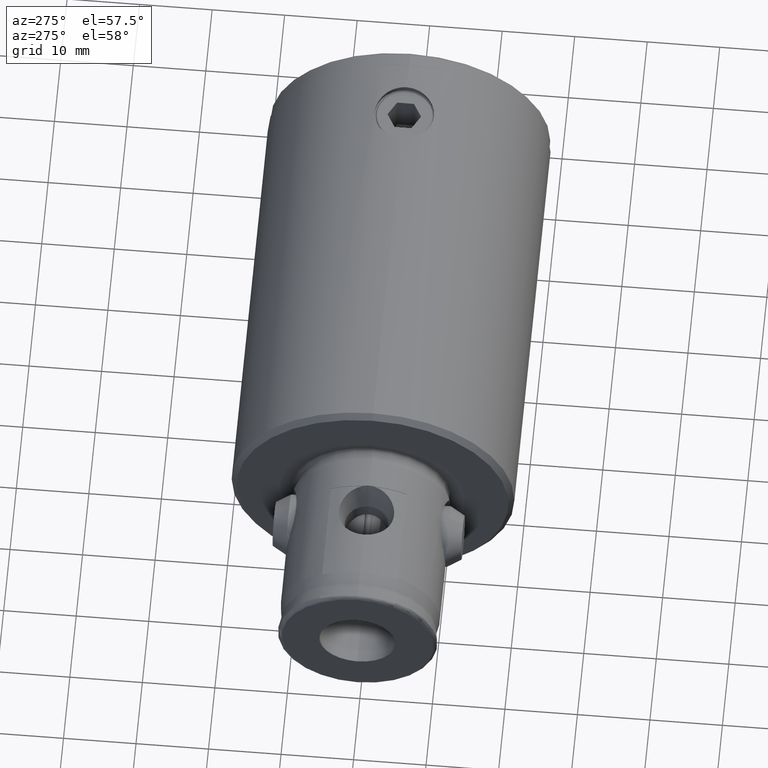
[diagram: clean part render]
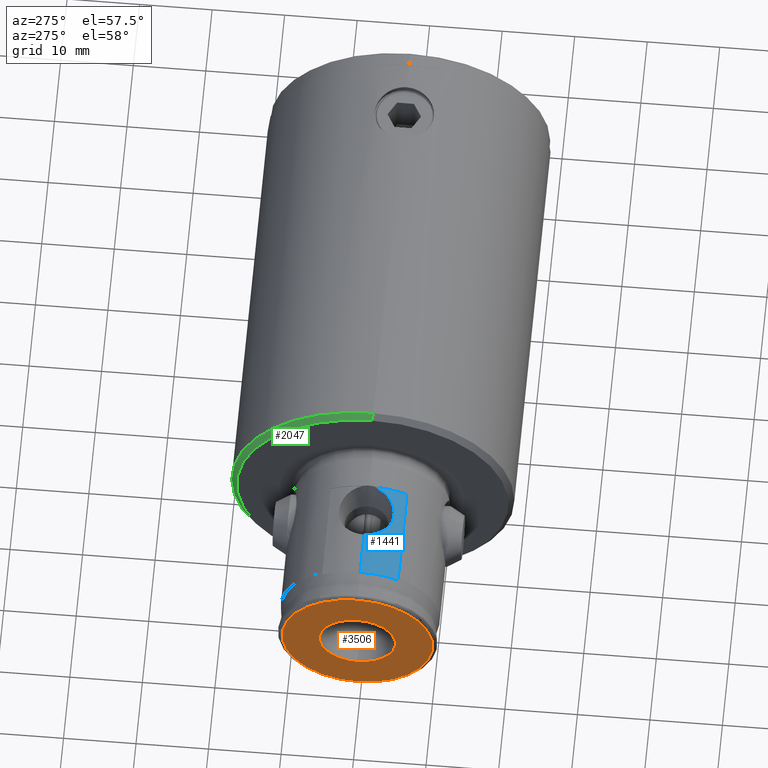
[diagram: same view with three faces highlighted in distinct colors, each labeled with its STEP entity id]
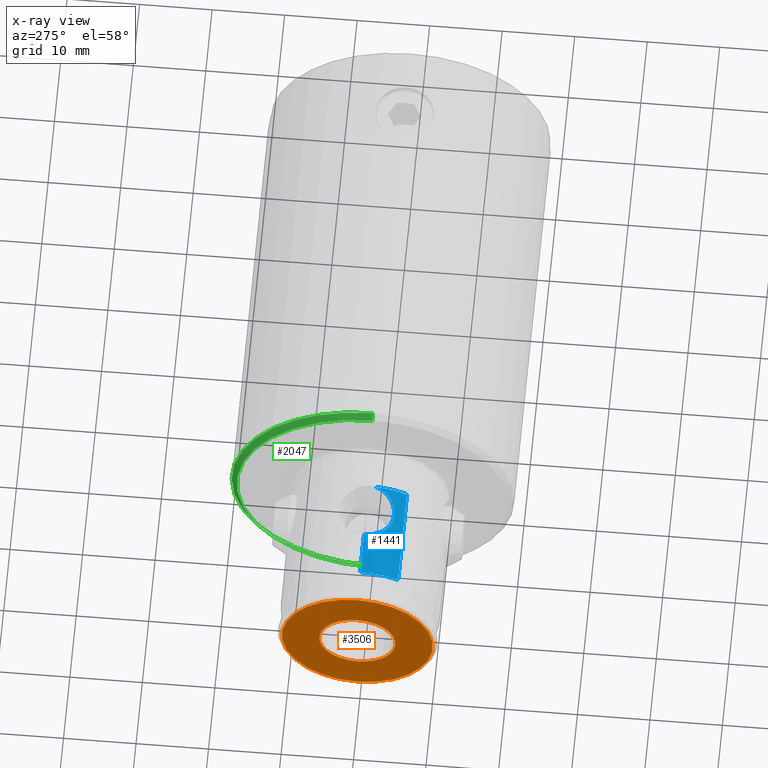
[diagram: x-ray of the same camera — body ghosted, the three highlighted faces saturated]
A machine part, auxiliary view with three faces highlighted in distinct colors.
The next image is the same camera in x-ray (body ghosted, the three faces saturated) — at least one of them is partly hidden behind the body in this view.
Their STEP definitions:

[orange] entity #3506 — the highlighted planar face has unit normal (-1, 0, 0).
#15 = EDGE_CURVE ( 'NONE', #3512, #3226, #1891, .T. ) ;
#100 = DIRECTION ( 'NONE',  ( 1.000000000000000000, 0.0000000000000000000, 0.0000000000000000000 ) ) ;
#421 = DIRECTION ( 'NONE',  ( 1.000000000000000000, 0.0000000000000000000, 0.0000000000000000000 ) ) ;
#439 = EDGE_LOOP ( 'NONE', ( #1877, #1135 ) ) ;
#454 = DIRECTION ( 'NONE',  ( 0.0000000000000000000, 0.0000000000000000000, 1.000000000000000000 ) ) ;
#475 = CARTESIAN_POINT ( 'NONE',  ( 0.0000000000000000000, 0.0000000000000000000, 83.99999999999998600 ) ) ;
#505 = EDGE_LOOP ( 'NONE', ( #1006, #2805 ) ) ;
#699 = AXIS2_PLACEMENT_3D ( 'NONE', #2475, #1800, #4316 ) ;
#704 = AXIS2_PLACEMENT_3D ( 'NONE', #2151, #4692, #2503 ) ;
#1006 = ORIENTED_EDGE ( 'NONE', *, *, #4218, .F. ) ;
#1080 = AXIS2_PLACEMENT_3D ( 'NONE', #1114, #3635, #1481 ) ;
#1114 = CARTESIAN_POINT ( 'NONE',  ( 0.0000000000000000000, 0.0000000000000000000, 83.99999999999998600 ) ) ;
#1117 = VERTEX_POINT ( 'NONE', #3392 ) ;
#1135 = ORIENTED_EDGE ( 'NONE', *, *, #2260, .T. ) ;
#1270 = VERTEX_POINT ( 'NONE', #2481 ) ;
#1369 = CIRCLE ( 'NONE', #704, 10.40839202169003000 ) ;
#1481 = DIRECTION ( 'NONE',  ( 1.000000000000000000, 0.0000000000000000000, 0.0000000000000000000 ) ) ;
#1800 = DIRECTION ( 'NONE',  ( 0.0000000000000000000, 0.0000000000000000000, 1.000000000000000000 ) ) ;
#1870 = FACE_OUTER_BOUND ( 'NONE', #439, .T. ) ;
#1877 = ORIENTED_EDGE ( 'NONE', *, *, #15, .T. ) ;
#1891 = CIRCLE ( 'NONE', #4167, 10.40839202169003000 ) ;
#2151 = CARTESIAN_POINT ( 'NONE',  ( 0.0000000000000000000, 0.0000000000000000000, 83.99999999999998600 ) ) ;
#2260 = EDGE_CURVE ( 'NONE', #3226, #3512, #1369, .T. ) ;
#2280 = DIRECTION ( 'NONE',  ( 0.0000000000000000000, 0.0000000000000000000, 1.000000000000000000 ) ) ;
#2475 = CARTESIAN_POINT ( 'NONE',  ( 0.0000000000000000000, 0.0000000000000000000, 83.99999999999998600 ) ) ;
#2481 = CARTESIAN_POINT ( 'NONE',  ( 5.249999999999988500, 0.0000000000000000000, 83.99999999999998600 ) ) ;
#2503 = DIRECTION ( 'NONE',  ( 1.000000000000000000, 0.0000000000000000000, 0.0000000000000000000 ) ) ;
#2805 = ORIENTED_EDGE ( 'NONE', *, *, #3560, .F. ) ;
#3023 = CARTESIAN_POINT ( 'NONE',  ( 10.40839202169003000, 1.310885938212720900E-015, 83.99999999999998600 ) ) ;
#3082 = CIRCLE ( 'NONE', #4269, 5.249999999999988500 ) ;
#3209 = PLANE ( 'NONE',  #699 ) ;
#3226 = VERTEX_POINT ( 'NONE', #3023 ) ;
#3392 = CARTESIAN_POINT ( 'NONE',  ( -5.249999999999988500, 6.429395695523590300E-016, 83.99999999999998600 ) ) ;
#3423 = CIRCLE ( 'NONE', #1080, 5.249999999999988500 ) ;
#3506 = ADVANCED_FACE ( 'NONE', ( #4132, #1870 ), #3209, .T. ) ;
#3512 = VERTEX_POINT ( 'NONE', #3949 ) ;
#3560 = EDGE_CURVE ( 'NONE', #1117, #1270, #3423, .T. ) ;
#3635 = DIRECTION ( 'NONE',  ( 0.0000000000000000000, 0.0000000000000000000, 1.000000000000000000 ) ) ;
#3949 = CARTESIAN_POINT ( 'NONE',  ( -10.40839202169003000, 0.0000000000000000000, 83.99999999999998600 ) ) ;
#4132 = FACE_BOUND ( 'NONE', #505, .T. ) ;
#4167 = AXIS2_PLACEMENT_3D ( 'NONE', #475, #454, #421 ) ;
#4218 = EDGE_CURVE ( 'NONE', #1270, #1117, #3082, .T. ) ;
#4269 = AXIS2_PLACEMENT_3D ( 'NONE', #4460, #2280, #100 ) ;
#4316 = DIRECTION ( 'NONE',  ( 1.000000000000000000, 0.0000000000000000000, 0.0000000000000000000 ) ) ;
#4460 = CARTESIAN_POINT ( 'NONE',  ( 0.0000000000000000000, 0.0000000000000000000, 83.99999999999998600 ) ) ;
#4692 = DIRECTION ( 'NONE',  ( 0.0000000000000000000, 0.0000000000000000000, 1.000000000000000000 ) ) ;

[blue] entity #1441 — the highlighted cylindrical surface (partial cylindrical patch) has radius 11 mm, axis along (-1, 0, 0).
#6 = CARTESIAN_POINT ( 'NONE',  ( 10.66527698629981400, -2.492469856563494600, 66.61903056252766900 ) ) ;
#76 = CARTESIAN_POINT ( 'NONE',  ( 10.94999999999999900, -0.4537184893482177400, 79.78356409098096000 ) ) ;
#331 = CARTESIAN_POINT ( 'NONE',  ( 10.91129298818501100, -0.9514204965630542700, 73.52493443035274400 ) ) ;
#350 = CARTESIAN_POINT ( 'NONE',  ( 10.28489345510745600, -3.767041546363515600, 70.29877509884899200 ) ) ;
#367 = CARTESIAN_POINT ( 'NONE',  ( 10.81961729792752500, -1.733747473468614000, 66.06061869512279800 ) ) ;
#449 = CARTESIAN_POINT ( 'NONE',  ( 10.80905743370498600, -1.813696568738276200, 79.77991429509752700 ) ) ;
#466 = VERTEX_POINT ( 'NONE', #2364 ) ;
#521 = VERTEX_POINT ( 'NONE', #3220 ) ;
#539 = CARTESIAN_POINT ( 'NONE',  ( 10.94999999999999900, 4.890304327766964200E-016, 73.64323651699024300 ) ) ;
#590 = VERTEX_POINT ( 'NONE', #539 ) ;
#706 = CARTESIAN_POINT ( 'NONE',  ( 10.83188070535241600, -1.623176719446241000, 73.27174910624796700 ) ) ;
#726 = CARTESIAN_POINT ( 'NONE',  ( 10.26649939494549500, -3.817091599625392000, 69.58437106398731900 ) ) ;
#743 = CARTESIAN_POINT ( 'NONE',  ( 10.91947234154720200, -0.8189484403983675600, 65.74999999999998600 ) ) ;
#749 = VERTEX_POINT ( 'NONE', #1509 ) ;
#769 = DIRECTION ( 'NONE',  ( 0.0000000000000000000, 0.0000000000000000000, -1.000000000000000000 ) ) ;
#827 = CARTESIAN_POINT ( 'NONE',  ( 10.38616391830050000, -3.594245898107188100, 79.76896428649348500 ) ) ;
#1074 = CARTESIAN_POINT ( 'NONE',  ( 10.72376072591941600, -2.228548092232589100, 72.89882755136909500 ) ) ;
#1099 = CARTESIAN_POINT ( 'NONE',  ( 10.29362263366560800, -3.743428086886627000, 68.86533236385916700 ) ) ;
#1113 = DIRECTION ( 'NONE',  ( 0.0000000000000000000, 0.0000000000000000000, 1.000000000000000000 ) ) ;
#1176 = CARTESIAN_POINT ( 'NONE',  ( 10.94999999999999900, 4.719200094192311200E-017, 79.78356409098094600 ) ) ;
#1194 = CARTESIAN_POINT ( 'NONE',  ( 9.616307464590644100, -5.249999999999999100, 79.74903603581017800 ) ) ;
#1195 = CYLINDRICAL_SURFACE ( 'NONE', #1860, 11.00000000000000000 ) ;
#1252 = EDGE_CURVE ( 'NONE', #521, #749, #2918, .T. ) ;
#1254 = FACE_OUTER_BOUND ( 'NONE', #2222, .T. ) ;
#1379 = B_SPLINE_CURVE_WITH_KNOTS ( 'NONE', 3,
 ( #3580, #3953, #2497, #331, #2856, #706, #3232, #1074, #3596, #1450, #3977, #1818, #4333, #2159, #4700, #2511, #350, #2873, #726, #3244, #1099, #3612, #1470, #3992, #1836, #4353, #2177, #6, #2526, #367, #2897, #743 ),
 .UNSPECIFIED., .F., .F.,
 ( 4, 2, 2, 2, 2, 2, 2, 2, 2, 2, 2, 2, 2, 2, 2, 4 ),
 ( 0.01147723532636959500, 0.01219359559830323500, 0.01290995587023687600, 0.01362631614217051600, 0.01434267641410415600, 0.01505903668603779400, 0.01577539695797143500, 0.01649175722990507300, 0.01720811750183871100, 0.01792447777377235300, 0.01864083804570599400, 0.01935719831763963600, 0.02007355858957327400, 0.02078991886150691200, 0.02150627913344055300, 0.02293899967730783300 ),
 .UNSPECIFIED. ) ;
#1397 = DIRECTION ( 'NONE',  ( 1.000000000000000000, 0.0000000000000000000, 0.0000000000000000000 ) ) ;
#1440 = B_SPLINE_CURVE_WITH_KNOTS ( 'NONE', 3,
 ( #1176, #76, #2606, #449, #2968, #827, #3338, #1194 ),
 .UNSPECIFIED., .F., .F.,
 ( 4, 2, 2, 4 ),
 ( 0.005447054268542994900, 0.006808165212190993600, 0.008169276155838992400, 0.01089149804313499000 ),
 .UNSPECIFIED. ) ;
#1441 = ADVANCED_FACE ( 'NONE', ( #1254 ), #1195, .T. ) ;
#1450 = CARTESIAN_POINT ( 'NONE',  ( 10.60057726783537600, -2.756071458746765400, 72.41895481182336900 ) ) ;
#1462 = LINE ( 'NONE', #3634, #2843 ) ;
#1470 = CARTESIAN_POINT ( 'NONE',  ( 10.36184850290262800, -3.550197941304011500, 68.17850246956904000 ) ) ;
#1509 = CARTESIAN_POINT ( 'NONE',  ( 9.616307464590644100, -5.249999999999999100, 79.74903603581017800 ) ) ;
#1765 = DIRECTION ( 'NONE',  ( 0.0000000000000000000, 0.0000000000000000000, 1.000000000000000000 ) ) ;
#1818 = CARTESIAN_POINT ( 'NONE',  ( 10.47976235803627200, -3.185064434833818400, 71.85604766344772500 ) ) ;
#1836 = CARTESIAN_POINT ( 'NONE',  ( 10.46306800182020200, -3.239505624835328700, 67.53292692106074900 ) ) ;
#1860 = AXIS2_PLACEMENT_3D ( 'NONE', #4280, #1765, #1397 ) ;
#1979 = EDGE_CURVE ( 'NONE', #590, #466, #1379, .T. ) ;
#2159 = CARTESIAN_POINT ( 'NONE',  ( 10.37503516063773500, -3.511432754155041600, 71.22013224387106300 ) ) ;
#2177 = CARTESIAN_POINT ( 'NONE',  ( 10.58213688033525200, -2.826169180501966400, 66.95966031106752300 ) ) ;
#2222 = EDGE_LOOP ( 'NONE', ( #4046, #3937, #3519, #4505, #4107 ) ) ;
#2323 = AXIS2_PLACEMENT_3D ( 'NONE', #2912, #769, #3285 ) ;
#2364 = CARTESIAN_POINT ( 'NONE',  ( 10.91947234154720200, -0.8189484403983675600, 65.74999999999998600 ) ) ;
#2425 = EDGE_CURVE ( 'NONE', #4315, #749, #1440, .T. ) ;
#2497 = CARTESIAN_POINT ( 'NONE',  ( 10.94191008765914900, -0.4827603535204988400, 73.61896422460684200 ) ) ;
#2511 = CARTESIAN_POINT ( 'NONE',  ( 10.30125209258481100, -3.722389368362894100, 70.53805540246239000 ) ) ;
#2526 = CARTESIAN_POINT ( 'NONE',  ( 10.70603258936241700, -2.312223618697947000, 66.46611884311649000 ) ) ;
#2606 = CARTESIAN_POINT ( 'NONE',  ( 10.92203744086934400, -0.9072033885066174100, 79.78283995216006000 ) ) ;
#2756 = VECTOR ( 'NONE', #2841, 1000.000000000000000 ) ;
#2841 = DIRECTION ( 'NONE',  ( 0.0000000000000000000, 0.0000000000000000000, 1.000000000000000000 ) ) ;
#2843 = VECTOR ( 'NONE', #1113, 1000.000000000000000 ) ;
#2856 = CARTESIAN_POINT ( 'NONE',  ( 10.88886993538117300, -1.179472290851838000, 73.45550077224267200 ) ) ;
#2869 = CARTESIAN_POINT ( 'NONE',  ( 10.94999999999999900, 4.719200094192311200E-017, 79.78356409098094600 ) ) ;
#2873 = CARTESIAN_POINT ( 'NONE',  ( 10.26766746258486900, -3.813969437734043000, 69.82306545589315800 ) ) ;
#2897 = CARTESIAN_POINT ( 'NONE',  ( 10.88428491625875500, -1.290269306806117100, 65.85860522173632600 ) ) ;
#2912 = CARTESIAN_POINT ( 'NONE',  ( -0.05000000000000000300, 0.0000000000000000000, 65.74999999999998600 ) ) ;
#2918 = LINE ( 'NONE', #4671, #2756 ) ;
#2968 = CARTESIAN_POINT ( 'NONE',  ( 10.72328552413632600, -2.268115791104856200, 79.77769324240192400 ) ) ;
#3220 = CARTESIAN_POINT ( 'NONE',  ( 9.616307464590603300, -5.249999999999999100, 65.74999999999998600 ) ) ;
#3232 = CARTESIAN_POINT ( 'NONE',  ( 10.79793972292660300, -1.833725864601417600, 73.15934217668014100 ) ) ;
#3244 = CARTESIAN_POINT ( 'NONE',  ( 10.27938757437802800, -3.782076200200929600, 69.10527772529619000 ) ) ;
#3285 = DIRECTION ( 'NONE',  ( 1.000000000000000000, 0.0000000000000000000, 0.0000000000000000000 ) ) ;
#3338 = CARTESIAN_POINT ( 'NONE',  ( 10.05558804166786800, -4.441195976904444000, 79.76040544019383600 ) ) ;
#3421 = CIRCLE ( 'NONE', #2323, 11.00000000000000000 ) ;
#3519 = ORIENTED_EDGE ( 'NONE', *, *, #2425, .T. ) ;
#3580 = CARTESIAN_POINT ( 'NONE',  ( 10.94999999999999900, 4.890304327766964200E-016, 73.64323651699024300 ) ) ;
#3596 = CARTESIAN_POINT ( 'NONE',  ( 10.68298495471444000, -2.415317781519375400, 72.74870671827851300 ) ) ;
#3612 = CARTESIAN_POINT ( 'NONE',  ( 10.33483720916193400, -3.627525212672810400, 68.40322283242507200 ) ) ;
#3634 = CARTESIAN_POINT ( 'NONE',  ( 10.94999999999999900, 0.0000000000000000000, 65.74999999999998600 ) ) ;
#3937 = ORIENTED_EDGE ( 'NONE', *, *, #4361, .T. ) ;
#3953 = CARTESIAN_POINT ( 'NONE',  ( 10.95000000000000300, -0.2394769277120148700, 73.64323651699024300 ) ) ;
#3977 = CARTESIAN_POINT ( 'NONE',  ( 10.55915267825819000, -2.909709645337152500, 72.24033901144946400 ) ) ;
#3992 = CARTESIAN_POINT ( 'NONE',  ( 10.42616313388728600, -3.355666947421320300, 67.74180547093718000 ) ) ;
#4046 = ORIENTED_EDGE ( 'NONE', *, *, #1979, .F. ) ;
#4104 = EDGE_CURVE ( 'NONE', #466, #521, #3421, .T. ) ;
#4107 = ORIENTED_EDGE ( 'NONE', *, *, #4104, .F. ) ;
#4280 = CARTESIAN_POINT ( 'NONE',  ( -0.05000000000000000300, 0.0000000000000000000, 65.74999999999998600 ) ) ;
#4315 = VERTEX_POINT ( 'NONE', #2869 ) ;
#4333 = CARTESIAN_POINT ( 'NONE',  ( 10.44156322480511700, -3.307358339733194300, 71.64851174372502400 ) ) ;
#4353 = CARTESIAN_POINT ( 'NONE',  ( 10.54093351667226700, -2.975083654229506700, 67.14263224068582800 ) ) ;
#4361 = EDGE_CURVE ( 'NONE', #590, #4315, #1462, .T. ) ;
#4505 = ORIENTED_EDGE ( 'NONE', *, *, #1252, .F. ) ;
#4671 = CARTESIAN_POINT ( 'NONE',  ( 9.616307464590603300, -5.249999999999999100, 65.74999999999998600 ) ) ;
#4700 = CARTESIAN_POINT ( 'NONE',  ( 10.34637803193865900, -3.594429900688810500, 70.99811322183495600 ) ) ;

[green] entity #2047 — the highlighted conical surface has half-angle 45 deg.
#37 = DIRECTION ( 'NONE',  ( -1.000000000000000000, 0.0000000000000000000, 0.0000000000000000000 ) ) ;
#90 = CIRCLE ( 'NONE', #4169, 19.50000000000000000 ) ;
#226 = AXIS2_PLACEMENT_3D ( 'NONE', #742, #722, #422 ) ;
#311 = EDGE_CURVE ( 'NONE', #3363, #2003, #623, .T. ) ;
#422 = DIRECTION ( 'NONE',  ( 1.000000000000000000, 0.0000000000000000000, 0.0000000000000000000 ) ) ;
#528 = EDGE_LOOP ( 'NONE', ( #3455, #3458, #3462, #3474 ) ) ;
#623 = CIRCLE ( 'NONE', #226, 18.75000000000000000 ) ;
#696 = CARTESIAN_POINT ( 'NONE',  ( -18.75000000000000000, 0.0000000000000000000, 60.00000000000000000 ) ) ;
#722 = DIRECTION ( 'NONE',  ( 0.0000000000000000000, 0.0000000000000000000, 1.000000000000000000 ) ) ;
#735 = CARTESIAN_POINT ( 'NONE',  ( -18.75000000000000000, 0.0000000000000000000, 60.00000000000000000 ) ) ;
#737 = VECTOR ( 'NONE', #3627, 1000.000000000000000 ) ;
#742 = CARTESIAN_POINT ( 'NONE',  ( 0.0000000000000000000, 0.0000000000000000000, 60.00000000000000000 ) ) ;
#890 = CARTESIAN_POINT ( 'NONE',  ( -19.50000000000000000, 0.0000000000000000000, 59.24999999999998600 ) ) ;
#1263 = LINE ( 'NONE', #735, #737 ) ;
#1354 = AXIS2_PLACEMENT_3D ( 'NONE', #1516, #2229, #37 ) ;
#1516 = CARTESIAN_POINT ( 'NONE',  ( 0.0000000000000000000, 0.0000000000000000000, 60.00000000000000000 ) ) ;
#1653 = DIRECTION ( 'NONE',  ( -0.0000000000000000000, -0.0000000000000000000, -1.000000000000000000 ) ) ;
#2003 = VERTEX_POINT ( 'NONE', #696 ) ;
#2047 = ADVANCED_FACE ( 'NONE', ( #3850 ), #3051, .T. ) ;
#2229 = DIRECTION ( 'NONE',  ( 0.0000000000000000000, 0.0000000000000000000, -1.000000000000000000 ) ) ;
#2246 = LINE ( 'NONE', #4388, #4071 ) ;
#2326 = EDGE_CURVE ( 'NONE', #2003, #2546, #1263, .T. ) ;
#2546 = VERTEX_POINT ( 'NONE', #890 ) ;
#2647 = VERTEX_POINT ( 'NONE', #3959 ) ;
#3051 = CONICAL_SURFACE ( 'NONE', #1354, 18.75000000000000000, 0.7853981633974391800 ) ;
#3299 = EDGE_CURVE ( 'NONE', #2546, #2647, #90, .T. ) ;
#3363 = VERTEX_POINT ( 'NONE', #3446 ) ;
#3446 = CARTESIAN_POINT ( 'NONE',  ( 18.75000000000000000, 2.342137003369313300E-015, 60.00000000000000000 ) ) ;
#3455 = ORIENTED_EDGE ( 'NONE', *, *, #311, .F. ) ;
#3458 = ORIENTED_EDGE ( 'NONE', *, *, #3706, .T. ) ;
#3462 = ORIENTED_EDGE ( 'NONE', *, *, #3299, .F. ) ;
#3474 = ORIENTED_EDGE ( 'NONE', *, *, #2326, .F. ) ;
#3627 = DIRECTION ( 'NONE',  ( -0.7071067811865410200, 0.0000000000000000000, -0.7071067811865540100 ) ) ;
#3706 = EDGE_CURVE ( 'NONE', #3363, #2647, #2246, .T. ) ;
#3813 = CARTESIAN_POINT ( 'NONE',  ( 0.0000000000000000000, 0.0000000000000000000, 59.24999999999998600 ) ) ;
#3850 = FACE_OUTER_BOUND ( 'NONE', #528, .T. ) ;
#3959 = CARTESIAN_POINT ( 'NONE',  ( 19.50000000000000000, 2.388061258337338900E-015, 59.24999999999998600 ) ) ;
#4071 = VECTOR ( 'NONE', #4423, 1000.000000000000000 ) ;
#4169 = AXIS2_PLACEMENT_3D ( 'NONE', #3813, #1653, #4181 ) ;
#4181 = DIRECTION ( 'NONE',  ( 1.000000000000000000, 0.0000000000000000000, 0.0000000000000000000 ) ) ;
#4388 = CARTESIAN_POINT ( 'NONE',  ( 18.75000000000000000, 2.296212748401287200E-015, 60.00000000000000000 ) ) ;
#4423 = DIRECTION ( 'NONE',  ( 0.7071067811865410200, 8.659560562354854000E-017, -0.7071067811865540100 ) ) ;